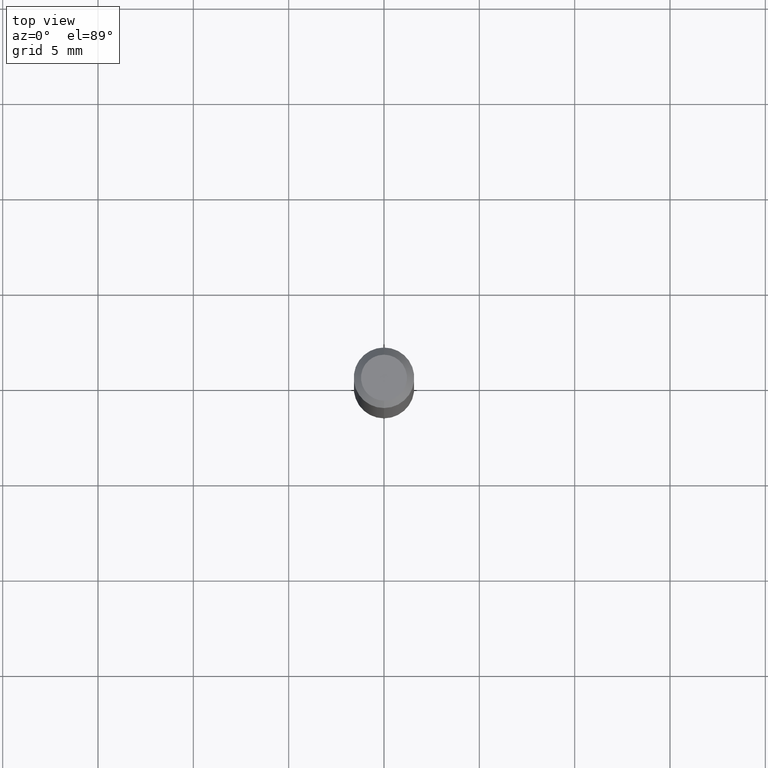
[diagram: clean part render]
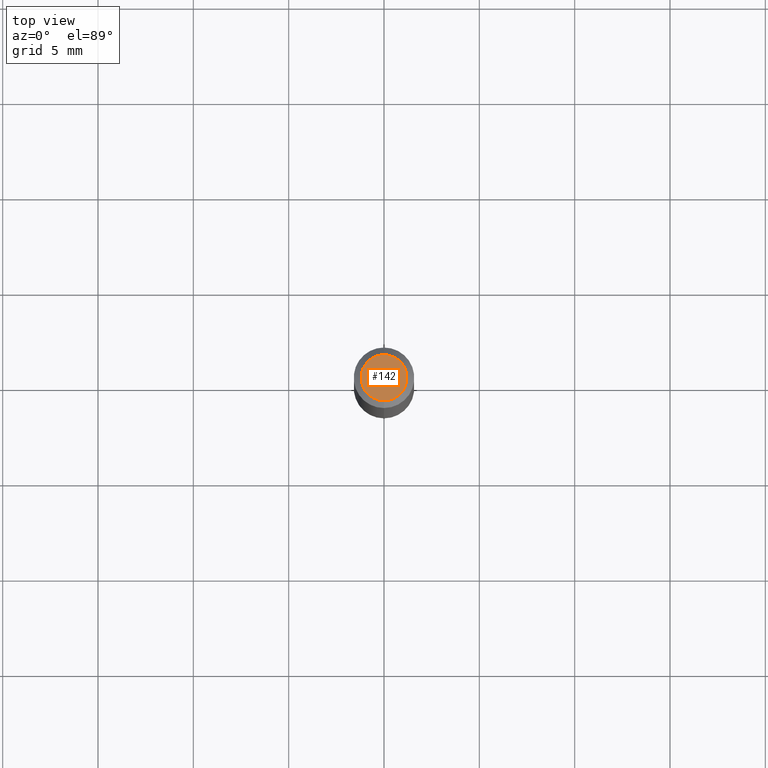
[diagram: same view with one face highlighted and labeled with its STEP entity id]
A machine part, top view. The second image highlights one B-rep face of the part: STEP entity #142.
In plain terms, the highlighted planar face has unit normal (0, -0, -1).
Its self-contained STEP definition (entity closure, byte-faithful):
#5 = FACE_OUTER_BOUND ( 'NONE', #316, .T. ) ;
#32 = ORIENTED_EDGE ( 'NONE', *, *, #328, .T. ) ;
#34 = DIRECTION ( 'NONE',  ( -2.445362566006528973E-29, 3.491633480825727200E-15, 1.000000000000000000 ) ) ;
#44 = DIRECTION ( 'NONE',  ( 2.445362566006528693E-29, -3.491633480825727200E-15, -1.000000000000000000 ) ) ;
#59 = VERTEX_POINT ( 'NONE', #217 ) ;
#64 = VERTEX_POINT ( 'NONE', #400 ) ;
#88 = CARTESIAN_POINT ( 'NONE',  ( 3.316907271900979054E-16, 0.04750000000000004219, -3.448923390024789188E-16 ) ) ;
#114 = DIRECTION ( 'NONE',  ( -6.982962677686265133E-15, -1.000000000000000000, 3.491633480825726805E-15 ) ) ;
#142 = ADVANCED_FACE ( 'NONE', ( #5 ), #250, .F. ) ;
#160 = ORIENTED_EDGE ( 'NONE', *, *, #458, .T. ) ;
#177 = DIRECTION ( 'NONE',  ( 6.982962677686265922E-15, 1.000000000000000000, -3.491633480825727200E-15 ) ) ;
#217 = CARTESIAN_POINT ( 'NONE',  ( -3.773273898774342241E-16, -0.04750000000000004219, -1.922269069872913270E-16 ) ) ;
#234 = CARTESIAN_POINT ( 'NONE',  ( 8.756341984166910779E-45, -1.250282361662500984E-30, -3.580794973265134972E-16 ) ) ;
#250 = PLANE ( 'NONE',  #302 ) ;
#266 = CARTESIAN_POINT ( 'NONE',  ( 8.756341984166910779E-45, -1.250282361662500984E-30, -3.580794973265134972E-16 ) ) ;
#294 = AXIS2_PLACEMENT_3D ( 'NONE', #234, #34, #114 ) ;
#302 = AXIS2_PLACEMENT_3D ( 'NONE', #88, #44, #177 ) ;
#312 = CIRCLE ( 'NONE', #294, 0.04750000000000004219 ) ;
#316 = EDGE_LOOP ( 'NONE', ( #32, #160 ) ) ;
#328 = EDGE_CURVE ( 'NONE', #64, #59, #453, .T. ) ;
#335 = DIRECTION ( 'NONE',  ( -2.445362566006528973E-29, 3.491633480825727200E-15, 1.000000000000000000 ) ) ;
#336 = AXIS2_PLACEMENT_3D ( 'NONE', #266, #335, #414 ) ;
#400 = CARTESIAN_POINT ( 'NONE',  ( 3.840629472727450339E-16, 0.04750000000000004219, -5.239320876657356674E-16 ) ) ;
#414 = DIRECTION ( 'NONE',  ( -6.982962677686265133E-15, -1.000000000000000000, 3.491633480825726805E-15 ) ) ;
#453 = CIRCLE ( 'NONE', #336, 0.04750000000000004219 ) ;
#458 = EDGE_CURVE ( 'NONE', #59, #64, #312, .T. ) ;